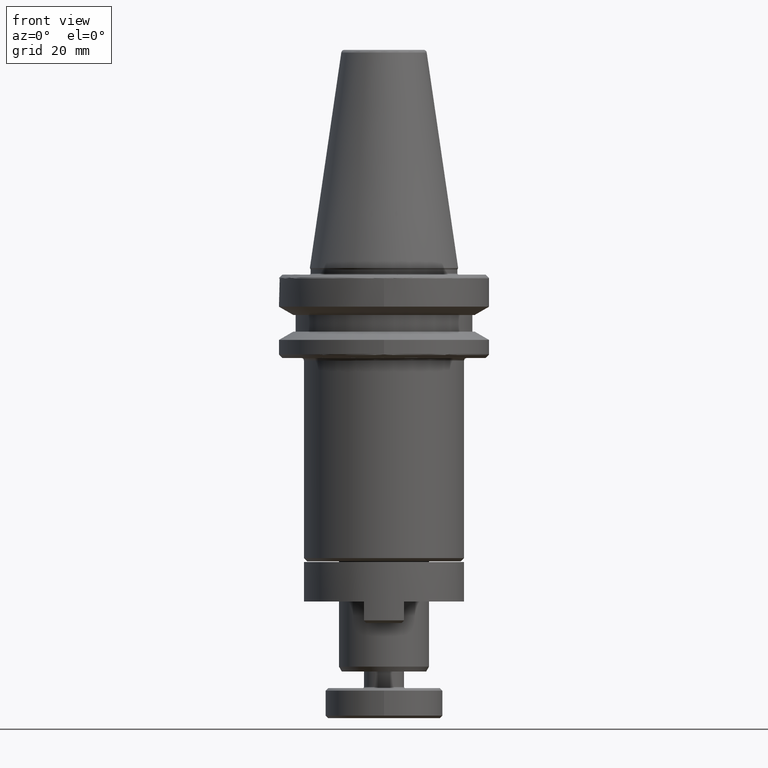
[diagram: clean part render]
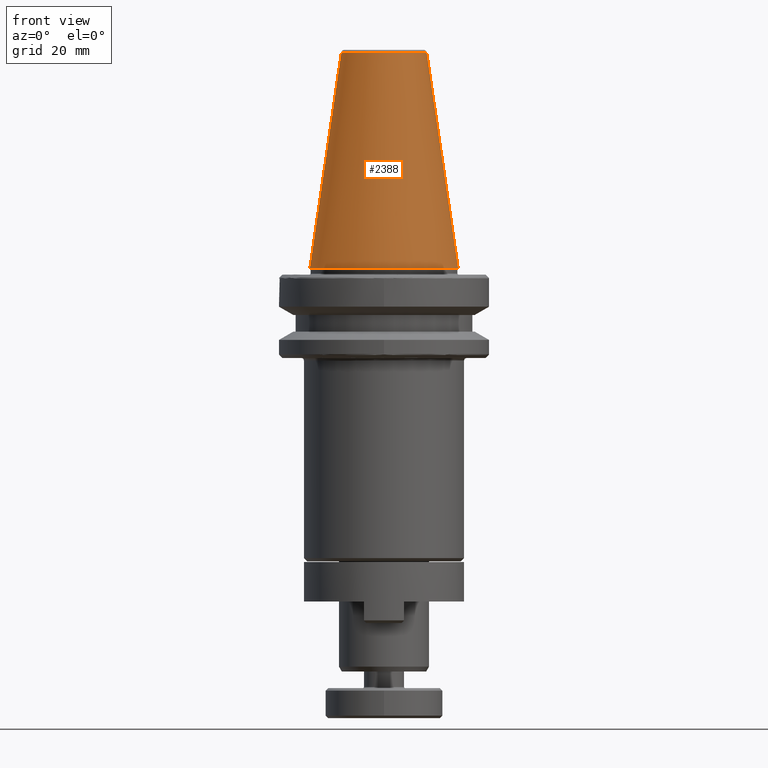
[diagram: same view with one face highlighted and labeled with its STEP entity id]
A machine part, front view. The second image highlights one B-rep face of the part: STEP entity #2388.
In plain terms, the highlighted conical surface has half-angle 8.297 deg.
Its self-contained STEP definition (entity closure, byte-faithful):
#69 = CARTESIAN_POINT ( 'NONE',  ( -12.81219950700000300, 0.0000000000000000000, 64.54430822700000200 ) ) ;
#76 = AXIS2_PLACEMENT_3D ( 'NONE', #1803, #1419, #1334 ) ;
#104 = FACE_OUTER_BOUND ( 'NONE', #3736, .T. ) ;
#309 = ORIENTED_EDGE ( 'NONE', *, *, #1309, .T. ) ;
#367 = VERTEX_POINT ( 'NONE', #1233 ) ;
#395 = CARTESIAN_POINT ( 'NONE',  ( 22.22499999999999800, 2.721777511104992100E-015, 0.0000000000000000000 ) ) ;
#484 = VERTEX_POINT ( 'NONE', #2641 ) ;
#509 = EDGE_CURVE ( 'NONE', #1691, #3362, #3277, .T. ) ;
#550 = AXIS2_PLACEMENT_3D ( 'NONE', #1810, #1815, #1819 ) ;
#783 = VECTOR ( 'NONE', #3668, 1000.000000000000000 ) ;
#963 = CONICAL_SURFACE ( 'NONE', #1060, 12.81219950700000300, 0.1448138465489547400 ) ;
#983 = EDGE_CURVE ( 'NONE', #367, #3362, #2687, .T. ) ;
#1060 = AXIS2_PLACEMENT_3D ( 'NONE', #1570, #2154, #1266 ) ;
#1233 = CARTESIAN_POINT ( 'NONE',  ( -22.22499999999999800, 0.0000000000000000000, 0.0000000000000000000 ) ) ;
#1266 = DIRECTION ( 'NONE',  ( -1.000000000000000000, 0.0000000000000000000, 0.0000000000000000000 ) ) ;
#1309 = EDGE_CURVE ( 'NONE', #484, #367, #1362, .T. ) ;
#1334 = DIRECTION ( 'NONE',  ( 1.000000000000000000, 0.0000000000000000000, 0.0000000000000000000 ) ) ;
#1362 = LINE ( 'NONE', #69, #783 ) ;
#1419 = DIRECTION ( 'NONE',  ( 0.0000000000000000000, 0.0000000000000000000, 1.000000000000000000 ) ) ;
#1474 = VECTOR ( 'NONE', #2727, 1000.000000000000000 ) ;
#1570 = CARTESIAN_POINT ( 'NONE',  ( 0.0000000000000000000, 0.0000000000000000000, 64.54430822700000200 ) ) ;
#1691 = VERTEX_POINT ( 'NONE', #1713 ) ;
#1708 = CIRCLE ( 'NONE', #550, 12.81219950700000300 ) ;
#1712 = EDGE_CURVE ( 'NONE', #484, #1691, #1708, .T. ) ;
#1713 = CARTESIAN_POINT ( 'NONE',  ( 12.81219950696690200, -3.941739068562204500E-009, 64.54430822700854300 ) ) ;
#1769 = CARTESIAN_POINT ( 'NONE',  ( 12.81219950700000300, 1.569041911628485000E-015, 64.54430822700000200 ) ) ;
#1803 = CARTESIAN_POINT ( 'NONE',  ( 0.0000000000000000000, 0.0000000000000000000, 0.0000000000000000000 ) ) ;
#1810 = CARTESIAN_POINT ( 'NONE',  ( 0.0000000000000000000, 0.0000000000000000000, 64.54430822699997300 ) ) ;
#1815 = DIRECTION ( 'NONE',  ( -0.0000000000000000000, -0.0000000000000000000, 1.000000000000000000 ) ) ;
#1819 = DIRECTION ( 'NONE',  ( -1.000000000000000000, 0.0000000000000000000, 2.166339635943424900E-015 ) ) ;
#2154 = DIRECTION ( 'NONE',  ( 0.0000000000000000000, 0.0000000000000000000, -1.000000000000000000 ) ) ;
#2270 = ORIENTED_EDGE ( 'NONE', *, *, #509, .F. ) ;
#2388 = ADVANCED_FACE ( 'NONE', ( #104 ), #963, .T. ) ;
#2603 = ORIENTED_EDGE ( 'NONE', *, *, #983, .T. ) ;
#2641 = CARTESIAN_POINT ( 'NONE',  ( -12.81219950696881500, -1.150453881886354600E-009, 64.54430822699541200 ) ) ;
#2687 = CIRCLE ( 'NONE', #76, 22.22499999999999800 ) ;
#2727 = DIRECTION ( 'NONE',  ( 0.1443082272688266400, 1.767266086153973400E-017, -0.9895327864919528600 ) ) ;
#2818 = ORIENTED_EDGE ( 'NONE', *, *, #1712, .F. ) ;
#3277 = LINE ( 'NONE', #1769, #1474 ) ;
#3362 = VERTEX_POINT ( 'NONE', #395 ) ;
#3668 = DIRECTION ( 'NONE',  ( -0.1443082272688266400, 0.0000000000000000000, -0.9895327864919528600 ) ) ;
#3736 = EDGE_LOOP ( 'NONE', ( #2270, #2818, #309, #2603 ) ) ;